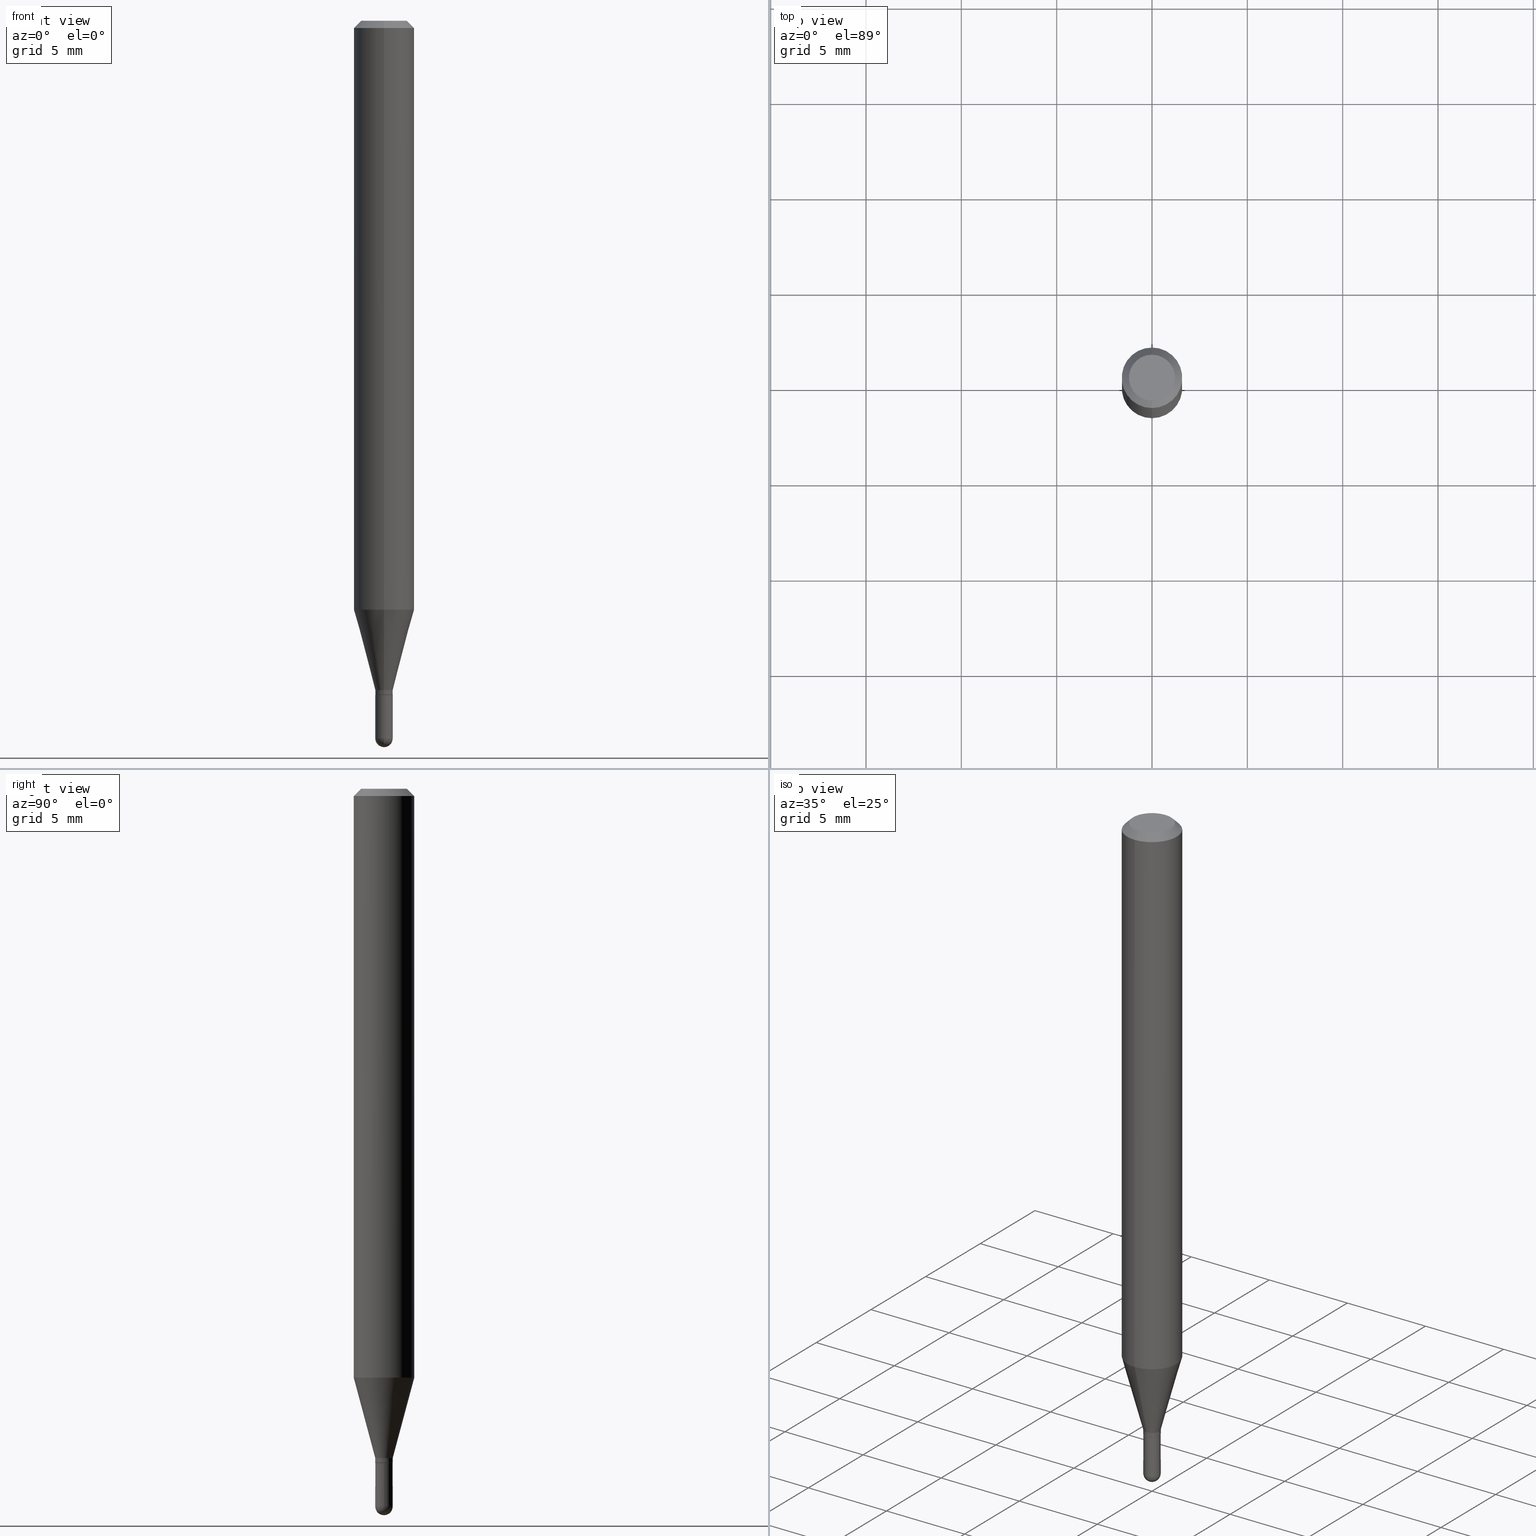
[diagram: canonical four-view strip — front | top / right | iso, engineering-drawing reading convention]
A machine part, canonical four-view strip (front | top / right | iso — engineering-drawing reading convention). The complete STEP part file that produces these views, byte-faithful:
ISO-10303-21;
HEADER;
FILE_DESCRIPTION (( 'STEP AP203' ),
    '1' );
FILE_NAME ('03134.STEP',
    '2024-03-08T18:18:46',
    ( '' ),
    ( '' ),
    'SwSTEP 2.0',
    'SolidWorks 2023',
    '' );
FILE_SCHEMA (( 'CONFIG_CONTROL_DESIGN' ));
ENDSEC;

DATA;
#1 = CARTESIAN_POINT ( 'NONE',  ( 1.278976924368174568E-16, 0.01799999999999992231, -6.284707459399665937E-17 ) ) ;
#2 = CARTESIAN_POINT ( 'NONE',  ( -5.856608403494851464E-45, 8.361793705848945321E-31, 2.394897259381071493E-16 ) ) ;
#3 = VERTEX_POINT ( 'NONE', #388 ) ;
#4 = CIRCLE ( 'NONE', #19, 0.01799999999999999864 ) ;
#5 = ORIENTED_EDGE ( 'NONE', *, *, #264, .T. ) ;
#6 = ORIENTED_EDGE ( 'NONE', *, *, #48, .T. ) ;
#7 = FACE_OUTER_BOUND ( 'NONE', #401, .T. ) ;
#8 = DIRECTION ( 'NONE',  ( -4.851104656540964275E-15, -0.7071067811865500152, -0.7071067811865450192 ) ) ;
#9 = DIRECTION ( 'NONE',  ( -2.445452881351750103E-29, 3.491504144110940427E-15, 1.000000000000000000 ) ) ;
#10 = LOCAL_TIME ( 13, 18, 46.00000000000000000, #165 ) ;
#11 = ADVANCED_FACE ( 'NONE', ( #243 ), #170, .T. ) ;
#12 = DIRECTION ( 'NONE',  ( 1.000000000000000000, -6.982962677686279332E-15, 0.000000000000000000 ) ) ;
#13 = VERTEX_POINT ( 'NONE', #297 ) ;
#14 = CARTESIAN_POINT ( 'NONE',  ( 0.01799999999999999864, -1.256933281983527929E-16, 8.777118196432682816E-31 ) ) ;
#15 = VECTOR ( 'NONE', #118, 39.37007874015748143 ) ;
#16 = ORIENTED_EDGE ( 'NONE', *, *, #190, .T. ) ;
#17 = APPROVAL_STATUS ( 'not_yet_approved' ) ;
#18 = LINE ( 'NONE', #300, #360 ) ;
#19 = AXIS2_PLACEMENT_3D ( 'NONE', #487, #218, #12 ) ;
#20 = PERSON_AND_ORGANIZATION ( #420, #271 ) ;
#21 = DIRECTION ( 'NONE',  ( -6.982962677686265922E-15, -1.000000000000000000, 3.483106191921935554E-15 ) ) ;
#22 = AXIS2_PLACEMENT_3D ( 'NONE', #480, #126, #511 ) ;
#23 = DATE_AND_TIME ( #494, #232 ) ;
#24 = DIRECTION ( 'NONE',  ( -6.982962677686265922E-15, -1.000000000000000000, 0.000000000000000000 ) ) ;
#25 = VECTOR ( 'NONE', #337, 39.37007874015748143 ) ;
#26 = ORIENTED_EDGE ( 'NONE', *, *, #190, .F. ) ;
#27 = EDGE_CURVE ( 'NONE', #442, #256, #80, .T. ) ;
#28 = FACE_OUTER_BOUND ( 'NONE', #408, .T. ) ;
#29 = CARTESIAN_POINT ( 'NONE',  ( 3.402847684400960204E-29, -4.858428016530374286E-15, -1.391500000000000181 ) ) ;
#30 = VERTEX_POINT ( 'NONE', #240 ) ;
#31 = ORIENTED_EDGE ( 'NONE', *, *, #104, .T. ) ;
#32 = CARTESIAN_POINT ( 'NONE',  ( 3.624184770766373010E-29, -5.174375344165542471E-15, -1.482000000000000206 ) ) ;
#33 = ADVANCED_FACE ( 'NONE', ( #28 ), #421, .T. ) ;
#34 = CLOSED_SHELL ( 'NONE', ( #456, #187, #54, #33, #193 ) ) ;
#35 = CONICAL_SURFACE ( 'NONE', #330, 0.01749999999999999820, 0.7853981633974739252 ) ;
#36 = VERTEX_POINT ( 'NONE', #272 ) ;
#37 = EDGE_LOOP ( 'NONE', ( #47, #134, #92, #125 ) ) ;
#38 = CARTESIAN_POINT ( 'NONE',  ( 0.000000000000000000, 0.000000000000000000, 0.000000000000000000 ) ) ;
#39 = CARTESIAN_POINT ( 'NONE',  ( 1.243449787580515640E-16, 0.01749999999999514097, -1.392000000000000126 ) ) ;
#40 = ORIENTED_EDGE ( 'NONE', *, *, #45, .T. ) ;
#41 = DIRECTION ( 'NONE',  ( 1.000000000000000000, -6.982962677686265922E-15, 4.883557194083112901E-29 ) ) ;
#42 = ORIENTED_EDGE ( 'NONE', *, *, #45, .F. ) ;
#43 = ORIENTED_EDGE ( 'NONE', *, *, #124, .T. ) ;
#44 = CIRCLE ( 'NONE', #140, 0.01799999999999999517 ) ;
#45 = EDGE_CURVE ( 'NONE', #486, #127, #309, .T. ) ;
#46 = DIRECTION ( 'NONE',  ( 7.105427357601000281E-15, 1.000000000000000000, 0.000000000000000000 ) ) ;
#47 = ORIENTED_EDGE ( 'NONE', *, *, #394, .F. ) ;
#48 = EDGE_CURVE ( 'NONE', #310, #178, #90, .T. ) ;
#49 = LINE ( 'NONE', #14, #81 ) ;
#50 = ORIENTED_EDGE ( 'NONE', *, *, #410, .F. ) ;
#51 = VECTOR ( 'NONE', #311, 39.37007874015748143 ) ;
#52 = UNCERTAINTY_MEASURE_WITH_UNIT (LENGTH_MEASURE( 1.000000000000000082E-05 ), #233, 'distance_accuracy_value', 'NONE');
#53 = DIRECTION ( 'NONE',  ( -2.445452881351750103E-29, 3.491504144110940427E-15, 1.000000000000000000 ) ) ;
#54 = ADVANCED_FACE ( 'NONE', ( #419 ), #467, .F. ) ;
#55 = LINE ( 'NONE', #333, #370 ) ;
#56 = CC_DESIGN_PERSON_AND_ORGANIZATION_ASSIGNMENT ( #191, #500, ( #354 ) ) ;
#57 = DIRECTION ( 'NONE',  ( -2.445468806185136597E-29, 3.491481338843145583E-15, 1.000000000000000000 ) ) ;
#58 = MECHANICAL_CONTEXT ( 'NONE', #197, 'mechanical' ) ;
#59 = CIRCLE ( 'NONE', #291, 0.01799999999999999517 ) ;
#60 = AXIS2_PLACEMENT_3D ( 'NONE', #116, #201, #143 ) ;
#61 = AXIS2_PLACEMENT_3D ( 'NONE', #347, #307, #147 ) ;
#62 = APPROVAL_DATE_TIME ( #349, #315 ) ;
#63 = DIRECTION ( 'NONE',  ( 1.000000000000000000, -6.982962677686279332E-15, 0.000000000000000000 ) ) ;
#64 = APPROVAL_PERSON_ORGANIZATION ( #20, #153, #301 ) ;
#65 = PERSON_AND_ORGANIZATION ( #420, #271 ) ;
#66 = DIRECTION ( 'NONE',  ( -2.445452881351749543E-29, 3.491504144110940427E-15, 1.000000000000000000 ) ) ;
#67 = CARTESIAN_POINT ( 'NONE',  ( 1.278976924368512546E-16, 0.01799999999999509631, -1.382000000000000117 ) ) ;
#68 = VECTOR ( 'NONE', #216, 39.37007874015748143 ) ;
#69 = ADVANCED_FACE ( 'NONE', ( #461 ), #428, .T. ) ;
#70 = EDGE_LOOP ( 'NONE', ( #400, #290, #43, #280 ) ) ;
#71 = PERSON_AND_ORGANIZATION ( #420, #271 ) ;
#72 = DIRECTION ( 'NONE',  ( -6.982962677686265133E-15, -1.000000000000000000, 0.000000000000000000 ) ) ;
#73 = LINE ( 'NONE', #67, #485 ) ;
#74 = ORIENTED_EDGE ( 'NONE', *, *, #452, .F. ) ;
#75 = LINE ( 'NONE', #39, #455 ) ;
#76 = CIRCLE ( 'NONE', #450, 0.01799999999999999517 ) ;
#77 = ORIENTED_EDGE ( 'NONE', *, *, #95, .T. ) ;
#78 = CC_DESIGN_PERSON_AND_ORGANIZATION_ASSIGNMENT ( #414, #106, ( #254 ) ) ;
#79 = CARTESIAN_POINT ( 'NONE',  ( 0.000000000000000000, 0.000000000000000000, 0.000000000000000000 ) ) ;
#80 = CIRCLE ( 'NONE', #378, 0.06250000000000000000 ) ;
#81 = VECTOR ( 'NONE', #141, 39.37007874015748143 ) ;
#82 = APPROVAL_ROLE ( '' ) ;
#83 = DIRECTION ( 'NONE',  ( 1.000000000000000000, -7.105427357601001070E-15, 4.926315508542082329E-29 ) ) ;
#84 = ORIENTED_EDGE ( 'NONE', *, *, #104, .F. ) ;
#85 = DIRECTION ( 'NONE',  ( -6.982962677686265922E-15, -1.000000000000000000, 0.000000000000000000 ) ) ;
#86 = ORIENTED_EDGE ( 'NONE', *, *, #288, .T. ) ;
#87 = ADVANCED_FACE ( 'NONE', ( #493 ), #130, .T. ) ;
#88 = VERTEX_POINT ( 'NONE', #499 ) ;
#89 = DIRECTION ( 'NONE',  ( -2.445452881351750103E-29, 3.491504144110940427E-15, 1.000000000000000000 ) ) ;
#90 = CIRCLE ( 'NONE', #377, 0.01799999999999992231 ) ;
#91 = ADVANCED_FACE ( 'NONE', ( #267 ), #304, .T. ) ;
#92 = ORIENTED_EDGE ( 'NONE', *, *, #288, .F. ) ;
#93 = DIRECTION ( 'NONE',  ( -6.982962677686265922E-15, -1.000000000000000000, 0.000000000000000000 ) ) ;
#94 = ORIENTED_EDGE ( 'NONE', *, *, #431, .T. ) ;
#95 = EDGE_CURVE ( 'NONE', #166, #256, #73, .T. ) ;
#96 = FACE_OUTER_BOUND ( 'NONE', #286, .T. ) ;
#97 = CARTESIAN_POINT ( 'NONE',  ( 0.01799999999999999864, -4.985835351868011408E-15, -1.392000000000000126 ) ) ;
#98 = SECURITY_CLASSIFICATION ( '', '', #299 ) ;
#99 = DIRECTION ( 'NONE',  ( -2.445468806185136597E-29, 3.491481338843145583E-15, 1.000000000000000000 ) ) ;
#100 = LINE ( 'NONE', #257, #434 ) ;
#101 = DATE_AND_TIME ( #238, #294 ) ;
#102 = AXIS2_PLACEMENT_3D ( 'NONE', #314, #41, #85 ) ;
#103 = DIRECTION ( 'NONE',  ( -6.982962677686265922E-15, -1.000000000000000000, 4.370956789862821150E-15 ) ) ;
#104 = EDGE_CURVE ( 'NONE', #312, #488, #149, .T. ) ;
#105 = ORIENTED_EDGE ( 'NONE', *, *, #234, .T. ) ;
#106 = PERSON_AND_ORGANIZATION_ROLE ( 'design_owner' ) ;
#107 = DIRECTION ( 'NONE',  ( 2.445452881351750103E-29, -3.491504144110940427E-15, -1.000000000000000000 ) ) ;
#108 = AXIS2_PLACEMENT_3D ( 'NONE', #367, #491, #406 ) ;
#109 = CARTESIAN_POINT ( 'NONE',  ( 1.278976924368510820E-16, 0.01799999999999500264, -1.391500000000000181 ) ) ;
#110 = DATE_AND_TIME ( #150, #172 ) ;
#111 = DIRECTION ( 'NONE',  ( -2.445452881351750103E-29, 3.491504144110940427E-15, 1.000000000000000000 ) ) ;
#112 = CIRCLE ( 'NONE', #483, 0.01799999999999992231 ) ;
#113 = ORIENTED_EDGE ( 'NONE', *, *, #184, .T. ) ;
#114 = DIRECTION ( 'NONE',  ( 1.000000000000000000, 0.000000000000000000, 0.000000000000000000 ) ) ;
#115 = ORIENTED_EDGE ( 'NONE', *, *, #274, .T. ) ;
#116 = CARTESIAN_POINT ( 'NONE',  ( 1.256933281983868125E-16, 0.01799999999999513794, -1.392000000000000126 ) ) ;
#117 = LOCAL_TIME ( 13, 18, 46.00000000000000000, #463 ) ;
#118 = DIRECTION ( 'NONE',  ( 4.937700262164548042E-15, 0.7071067811865451302, -0.7071067811865499042 ) ) ;
#119 = ORIENTED_EDGE ( 'NONE', *, *, #179, .F. ) ;
#120 = DIRECTION ( 'NONE',  ( 6.982962677686265922E-15, 1.000000000000000000, -3.491504144110940427E-15 ) ) ;
#121 = APPROVAL_DATE_TIME ( #159, #348 ) ;
#122 = FACE_OUTER_BOUND ( 'NONE', #282, .T. ) ;
#123 = CARTESIAN_POINT ( 'NONE',  ( 4.440892098500920998E-16, 0.06249999999999573952, -1.215923739063185627 ) ) ;
#124 = EDGE_CURVE ( 'NONE', #496, #310, #18, .T. ) ;
#125 = ORIENTED_EDGE ( 'NONE', *, *, #148, .F. ) ;
#126 = DIRECTION ( 'NONE',  ( -2.445452881351750103E-29, 3.491504144110940427E-15, 1.000000000000000000 ) ) ;
#127 = VERTEX_POINT ( 'NONE', #464 ) ;
#128 = ORIENTED_EDGE ( 'NONE', *, *, #179, .T. ) ;
#129 = DIRECTION ( 'NONE',  ( -2.445452881351750103E-29, 3.491504144110940427E-15, 1.000000000000000000 ) ) ;
#130 = CONICAL_SURFACE ( 'NONE', #205, 0.01799999999999992231, 0.2617993877991502960 ) ;
#131 = ADVANCED_FACE ( 'NONE', ( #270 ), #374, .T. ) ;
#132 = CC_DESIGN_APPROVAL ( #153, ( #354 ) ) ;
#133 = DIRECTION ( 'NONE',  ( -2.445452881351750103E-29, 3.491504144110940427E-15, 1.000000000000000000 ) ) ;
#134 = ORIENTED_EDGE ( 'NONE', *, *, #212, .T. ) ;
#135 = MANIFOLD_SOLID_BREP ( 'Body-Move/Copy2[2]', #469 ) ;
#136 = PRODUCT_RELATED_PRODUCT_CATEGORY ( 'detail', '', ( #254 ) ) ;
#137 = CARTESIAN_POINT ( 'NONE',  ( 0.000000000000000000, 0.000000000000000000, 0.000000000000000000 ) ) ;
#138 = DIRECTION ( 'NONE',  ( -6.982962677686266711E-15, -1.000000000000000000, 3.491504144110940033E-15 ) ) ;
#139 = ORIENTED_EDGE ( 'NONE', *, *, #207, .T. ) ;
#140 = AXIS2_PLACEMENT_3D ( 'NONE', #295, #57, #372 ) ;
#141 = DIRECTION ( 'NONE',  ( -2.445468806185136877E-29, 3.491481338843145188E-15, 1.000000000000000000 ) ) ;
#142 =( NAMED_UNIT ( * ) PLANE_ANGLE_UNIT ( ) SI_UNIT ( $, .RADIAN. ) );
#143 = DIRECTION ( 'NONE',  ( -1.000000000000000000, 6.982962677686265922E-15, -4.876176775795935793E-29 ) ) ;
#144 = DIMENSIONAL_EXPONENTS ( 1.000000000000000000, 0.000000000000000000, 0.000000000000000000, 0.000000000000000000, 0.000000000000000000, 0.000000000000000000, 0.000000000000000000 ) ;
#145 = APPROVAL_STATUS ( 'not_yet_approved' ) ;
#146 = MANIFOLD_SOLID_BREP ( 'Body-Move/Copy2[1]', #34 ) ;
#147 = DIRECTION ( 'NONE',  ( -6.982962677686265133E-15, -1.000000000000000000, 3.491504144110940427E-15 ) ) ;
#148 = EDGE_CURVE ( 'NONE', #30, #3, #59, .T. ) ;
#149 = CIRCLE ( 'NONE', #171, 0.06250000000000000000 ) ;
#150 = CALENDAR_DATE ( 2024, 8, 3 ) ;
#151 = AXIS2_PLACEMENT_3D ( 'NONE', #446, #405, #339 ) ;
#152 = CARTESIAN_POINT ( 'NONE',  ( 3.622645471445850223E-29, -5.176579708404007627E-15, -1.482000000000000206 ) ) ;
#153 = APPROVAL ( #145, 'UNSPECIFIED' ) ;
#154 = PERSON_AND_ORGANIZATION ( #420, #271 ) ;
#155 = DIRECTION ( 'NONE',  ( -4.937700262164674260E-15, -0.7071067811865632269, 0.7071067811865319186 ) ) ;
#156 = PERSON_AND_ORGANIZATION_ROLE ( 'creator' ) ;
#157 = ORIENTED_EDGE ( 'NONE', *, *, #371, .T. ) ;
#158 = DIRECTION ( 'NONE',  ( -2.445452881351750103E-29, 3.491504144110940427E-15, 1.000000000000000000 ) ) ;
#159 = DATE_AND_TIME ( #475, #10 ) ;
#160 = LINE ( 'NONE', #249, #51 ) ;
#161 = CIRCLE ( 'NONE', #407, 0.01749999999999999820 ) ;
#162 = ORIENTED_EDGE ( 'NONE', *, *, #502, .F. ) ;
#163 = LINE ( 'NONE', #318, #15 ) ;
#164 = ADVANCED_FACE ( 'NONE', ( #381 ), #189, .F. ) ;
#165 = COORDINATED_UNIVERSAL_TIME_OFFSET ( 5, 0, .BEHIND. ) ;
#166 = VERTEX_POINT ( 'NONE', #192 ) ;
#167 = CARTESIAN_POINT ( 'NONE',  ( -0.01799999999999999864, 1.278976924368180238E-16, -8.854083162458829188E-31 ) ) ;
#168 = AXIS2_PLACEMENT_3D ( 'NONE', #38, #478, #211 ) ;
#169 = CARTESIAN_POINT ( 'NONE',  ( -1.256933281983184281E-16, -0.01800000000000474831, -1.382000000000000117 ) ) ;
#170 = CONICAL_SURFACE ( 'NONE', #231, 0.06250000000000000000, 0.7853981633974483900 ) ;
#171 = AXIS2_PLACEMENT_3D ( 'NONE', #302, #386, #21 ) ;
#172 = LOCAL_TIME ( 13, 18, 46.00000000000000000, #265 ) ;
#173 = CC_DESIGN_PERSON_AND_ORGANIZATION_ASSIGNMENT ( #424, #156, ( #250 ) ) ;
#174 = FACE_OUTER_BOUND ( 'NONE', #433, .T. ) ;
#175 = CARTESIAN_POINT ( 'NONE',  ( -4.364351673553916201E-16, -0.06250000000000000000, 2.182190090069337767E-16 ) ) ;
#176 = ORIENTED_EDGE ( 'NONE', *, *, #380, .T. ) ;
#177 = DIRECTION ( 'NONE',  ( -6.982962677686265922E-15, -1.000000000000000000, 3.483106191921935554E-15 ) ) ;
#178 = VERTEX_POINT ( 'NONE', #109 ) ;
#179 = EDGE_CURVE ( 'NONE', #178, #166, #474, .T. ) ;
#180 = AXIS2_PLACEMENT_3D ( 'NONE', #489, #133, #138 ) ;
#181 = CARTESIAN_POINT ( 'NONE',  ( 4.440892098500924943E-16, 0.06249999999999993755, -0.01499999999999997863 ) ) ;
#182 = DIRECTION ( 'NONE',  ( -2.445468806185136597E-29, 3.491481338843145583E-15, 1.000000000000000000 ) ) ;
#183 = VECTOR ( 'NONE', #359, 39.37007874015748143 ) ;
#184 = EDGE_CURVE ( 'NONE', #178, #310, #338, .T. ) ;
#185 = CARTESIAN_POINT ( 'NONE',  ( 4.440892098500625669E-16, 0.06250000000000000000, -2.182190090069337767E-16 ) ) ;
#186 = AXIS2_PLACEMENT_3D ( 'NONE', #259, #9, #402 ) ;
#187 = ADVANCED_FACE ( 'NONE', ( #509 ), #361, .T. ) ;
#188 =( NAMED_UNIT ( * ) SI_UNIT ( $, .STERADIAN. ) SOLID_ANGLE_UNIT ( ) );
#189 = PLANE ( 'NONE',  #239 ) ;
#190 = EDGE_CURVE ( 'NONE', #199, #36, #306, .T. ) ;
#191 = PERSON_AND_ORGANIZATION ( #420, #271 ) ;
#192 = CARTESIAN_POINT ( 'NONE',  ( 2.859934511434718867E-16, 0.01799999999999509631, -1.382000000000000117 ) ) ;
#193 = ADVANCED_FACE ( 'NONE', ( #174 ), #278, .T. ) ;
#194 = DIRECTION ( 'NONE',  ( 0.000000000000000000, 0.000000000000000000, 1.000000000000000000 ) ) ;
#195 = APPROVAL_PERSON_ORGANIZATION ( #71, #348, #82 ) ;
#196 = DIRECTION ( 'NONE',  ( 6.982962677686265922E-15, 1.000000000000000000, -3.483106191921935554E-15 ) ) ;
#197 = APPLICATION_CONTEXT ( 'configuration controlled 3d designs of mechanical parts and assemblies' ) ;
#198 = APPLICATION_PROTOCOL_DEFINITION ( 'international standard', 'config_control_design', 1994, #228 ) ;
#199 = VERTEX_POINT ( 'NONE', #324 ) ;
#200 = DIRECTION ( 'NONE',  ( 1.000000000000000000, -6.982962677686265922E-15, 4.883557194083112901E-29 ) ) ;
#201 = DIRECTION ( 'NONE',  ( 2.438088387897960049E-29, -3.491481338843145188E-15, -1.000000000000000000 ) ) ;
#202 = CIRCLE ( 'NONE', #423, 0.01749999999999999820 ) ;
#203 = EDGE_LOOP ( 'NONE', ( #222, #139, #357, #266 ) ) ;
#204 = ORIENTED_EDGE ( 'NONE', *, *, #274, .F. ) ;
#205 = AXIS2_PLACEMENT_3D ( 'NONE', #503, #454, #72 ) ;
#206 = CARTESIAN_POINT ( 'NONE',  ( -1.256933281983186500E-16, -0.01800000000000484199, -1.391500000000000181 ) ) ;
#207 = EDGE_CURVE ( 'NONE', #166, #317, #399, .T. ) ;
#208 = CONICAL_SURFACE ( 'NONE', #151, 0.06250000000000000000, 0.7853981633974483900 ) ;
#209 = ORIENTED_EDGE ( 'NONE', *, *, #124, .F. ) ;
#210 = ORIENTED_EDGE ( 'NONE', *, *, #391, .F. ) ;
#211 = DIRECTION ( 'NONE',  ( 1.000000000000000000, -6.982962677686266711E-15, 4.876176775795935232E-29 ) ) ;
#212 = EDGE_CURVE ( 'NONE', #437, #88, #252, .T. ) ;
#213 = EDGE_LOOP ( 'NONE', ( #40, #157 ) ) ;
#214 = CARTESIAN_POINT ( 'NONE',  ( 3.404070410841636350E-29, -4.860173768602429131E-15, -1.392000000000000126 ) ) ;
#215 = ORIENTED_EDGE ( 'NONE', *, *, #391, .T. ) ;
#216 = DIRECTION ( 'NONE',  ( -2.445452881351750103E-29, 3.491504144110940427E-15, 1.000000000000000000 ) ) ;
#217 = ORIENTED_EDGE ( 'NONE', *, *, #48, .F. ) ;
#218 = DIRECTION ( 'NONE',  ( -2.445468806185136597E-29, 3.491481338843145583E-15, 1.000000000000000000 ) ) ;
#219 = EDGE_LOOP ( 'NONE', ( #210, #26, #115, #220 ) ) ;
#220 = ORIENTED_EDGE ( 'NONE', *, *, #429, .T. ) ;
#221 = CARTESIAN_POINT ( 'NONE',  ( 3.624184770766373010E-29, -5.174375344165542471E-15, -1.482000000000000206 ) ) ;
#222 = ORIENTED_EDGE ( 'NONE', *, *, #95, .F. ) ;
#223 = CYLINDRICAL_SURFACE ( 'NONE', #292, 0.06250000000000000000 ) ;
#224 = ORIENTED_EDGE ( 'NONE', *, *, #148, .T. ) ;
#225 = CC_DESIGN_SECURITY_CLASSIFICATION ( #98, ( #354 ) ) ;
#226 = DIRECTION ( 'NONE',  ( -2.445452881351750103E-29, 3.491504144110940427E-15, 1.000000000000000000 ) ) ;
#227 = DIRECTION ( 'NONE',  ( -1.807323732225330139E-15, -0.2588190451025181860, 0.9659258262890689783 ) ) ;
#228 = APPLICATION_CONTEXT ( 'configuration controlled 3d designs of mechanical parts and assemblies' ) ;
#229 = ADVANCED_FACE ( 'NONE', ( #472 ), #281, .T. ) ;
#230 = AXIS2_PLACEMENT_3D ( 'NONE', #32, #275, #430 ) ;
#231 = AXIS2_PLACEMENT_3D ( 'NONE', #427, #107, #196 ) ;
#232 = LOCAL_TIME ( 13, 18, 46.00000000000000000, #305 ) ;
#233 =( CONVERSION_BASED_UNIT ( 'INCH', #492 ) LENGTH_UNIT ( ) NAMED_UNIT ( #144 ) );
#234 = EDGE_CURVE ( 'NONE', #310, #317, #160, .T. ) ;
#235 = CARTESIAN_POINT ( 'NONE',  ( 0.000000000000000000, 0.000000000000000000, 0.000000000000000000 ) ) ;
#236 = DIRECTION ( 'NONE',  ( -6.982962677686265922E-15, -1.000000000000000000, 3.491504144110940427E-15 ) ) ;
#237 = CC_DESIGN_PERSON_AND_ORGANIZATION_ASSIGNMENT ( #154, #303, ( #98 ) ) ;
#238 = CALENDAR_DATE ( 2024, 8, 3 ) ;
#239 = AXIS2_PLACEMENT_3D ( 'NONE', #342, #66, #236 ) ;
#240 = CARTESIAN_POINT ( 'NONE',  ( -1.256933281983159137E-16, -0.01800000000000508138, -1.482000000000000206 ) ) ;
#241 = CARTESIAN_POINT ( 'NONE',  ( 3.379615882028119036E-29, -4.825258727161319601E-15, -1.382000000000000117 ) ) ;
#242 = ORIENTED_EDGE ( 'NONE', *, *, #380, .F. ) ;
#243 = FACE_OUTER_BOUND ( 'NONE', #508, .T. ) ;
#244 = CARTESIAN_POINT ( 'NONE',  ( 2.973484211196059892E-29, -4.245402773861981579E-15, -1.215923739063185405 ) ) ;
#245 = CARTESIAN_POINT ( 'NONE',  ( 3.379615882028119036E-29, -4.825258727161319601E-15, -1.382000000000000117 ) ) ;
#246 = PLANE ( 'NONE',  #319 ) ;
#247 = ADVANCED_FACE ( 'NONE', ( #277 ), #246, .F. ) ;
#248 = CC_DESIGN_APPROVAL ( #315, ( #250 ) ) ;
#249 = CARTESIAN_POINT ( 'NONE',  ( -1.256933281983522259E-16, -0.01799999999999992231, 6.284707459399665937E-17 ) ) ;
#250 = PRODUCT_DEFINITION ( 'UNKNOWN', '', #354, #287 ) ;
#251 = DIRECTION ( 'NONE',  ( 5.024295867788190974E-15, 0.7071067811865681119, 0.7071067811865270336 ) ) ;
#252 = CIRCLE ( 'NONE', #384, 0.01799999999999982170 ) ;
#253 = CARTESIAN_POINT ( 'NONE',  ( 3.402847684400960204E-29, -4.858428016530374286E-15, -1.391500000000000181 ) ) ;
#254 = PRODUCT ( '03134', '03134', '', ( #58 ) ) ;
#255 = DIRECTION ( 'NONE',  ( -2.445452881351750103E-29, 3.491504144110940427E-15, 1.000000000000000000 ) ) ;
#256 = VERTEX_POINT ( 'NONE', #123 ) ;
#257 = CARTESIAN_POINT ( 'NONE',  ( -1.256933281983184281E-16, -0.01800000000000474831, -1.382000000000000117 ) ) ;
#258 = CARTESIAN_POINT ( 'NONE',  ( 3.404070410841636350E-29, -4.860173768602429131E-15, -1.392000000000000126 ) ) ;
#259 = CARTESIAN_POINT ( 'NONE',  ( 2.973484211196059892E-29, -4.245402773861981579E-15, -1.215923739063185405 ) ) ;
#260 = CARTESIAN_POINT ( 'NONE',  ( 3.665894260296920714E-29, -5.240528554622416701E-15, -1.500000000000000222 ) ) ;
#261 = CONICAL_SURFACE ( 'NONE', #366, 0.01749999999999999820, 0.7853981633974739252 ) ;
#262 = DIRECTION ( 'NONE',  ( -2.445468806185136597E-29, 3.491481338843145583E-15, 1.000000000000000000 ) ) ;
#263 = CIRCLE ( 'NONE', #180, 0.04749999999999999362 ) ;
#264 = EDGE_CURVE ( 'NONE', #507, #178, #75, .T. ) ;
#265 = COORDINATED_UNIVERSAL_TIME_OFFSET ( 5, 0, .BEHIND. ) ;
#266 = ORIENTED_EDGE ( 'NONE', *, *, #362, .F. ) ;
#267 = FACE_OUTER_BOUND ( 'NONE', #481, .T. ) ;
#268 = CARTESIAN_POINT ( 'NONE',  ( 3.404092578209710223E-29, -4.860142023669658418E-15, -1.392000000000000126 ) ) ;
#269 = DATE_TIME_ROLE ( 'classification_date' ) ;
#270 = FACE_OUTER_BOUND ( 'NONE', #203, .T. ) ;
#271 = ORGANIZATION ( 'UNSPECIFIED', 'UNSPECIFIED', '' ) ;
#272 = CARTESIAN_POINT ( 'NONE',  ( -3.773273898774340269E-16, -0.04749999999999999362, 4.053361727833767782E-16 ) ) ;
#273 = DIRECTION ( 'NONE',  ( -2.445452881351750103E-29, 3.491504144110940427E-15, 1.000000000000000000 ) ) ;
#274 = EDGE_CURVE ( 'NONE', #199, #488, #163, .T. ) ;
#275 = DIRECTION ( 'NONE',  ( -2.445468806185136597E-29, 3.491481338843145583E-15, 1.000000000000000000 ) ) ;
#276 = AXIS2_PLACEMENT_3D ( 'NONE', #241, #495, #458 ) ;
#277 = FACE_OUTER_BOUND ( 'NONE', #479, .T. ) ;
#278 = CYLINDRICAL_SURFACE ( 'NONE', #168, 0.01799999999999999864 ) ;
#279 = ORIENTED_EDGE ( 'NONE', *, *, #371, .F. ) ;
#280 = ORIENTED_EDGE ( 'NONE', *, *, #184, .F. ) ;
#281 = CYLINDRICAL_SURFACE ( 'NONE', #449, 0.01799999999999992231 ) ;
#282 = EDGE_LOOP ( 'NONE', ( #176, #5, #217, #209 ) ) ;
#283 = FACE_OUTER_BOUND ( 'NONE', #70, .T. ) ;
#284 = AXIS2_PLACEMENT_3D ( 'NONE', #448, #226, #177 ) ;
#285 = FACE_OUTER_BOUND ( 'NONE', #219, .T. ) ;
#286 = EDGE_LOOP ( 'NONE', ( #440, #353, #42, #397, #86 ) ) ;
#287 = DESIGN_CONTEXT ( 'detailed design', #228, 'design' ) ;
#288 = EDGE_CURVE ( 'NONE', #3, #88, #512, .T. ) ;
#289 = CARTESIAN_POINT ( 'NONE',  ( 1.261213355974515202E-16, 0.01749999999999514097, -1.392000000000000126 ) ) ;
#290 = ORIENTED_EDGE ( 'NONE', *, *, #298, .T. ) ;
#291 = AXIS2_PLACEMENT_3D ( 'NONE', #425, #262, #416 ) ;
#292 = AXIS2_PLACEMENT_3D ( 'NONE', #137, #364, #453 ) ;
#293 = DIRECTION ( 'NONE',  ( 1.000000000000000000, -6.982962677686266711E-15, 4.876176775795935232E-29 ) ) ;
#294 = LOCAL_TIME ( 13, 18, 46.00000000000000000, #346 ) ;
#295 = CARTESIAN_POINT ( 'NONE',  ( 3.624184770766373010E-29, -5.174375344165542471E-15, -1.482000000000000206 ) ) ;
#296 = ORIENTED_EDGE ( 'NONE', *, *, #362, .T. ) ;
#297 = CARTESIAN_POINT ( 'NONE',  ( -0.01799999999999999517, -4.889360991480781903E-15, -1.482000000000000206 ) ) ;
#298 = EDGE_CURVE ( 'NONE', #507, #496, #202, .T. ) ;
#299 = SECURITY_CLASSIFICATION_LEVEL ( 'unclassified' ) ;
#300 = CARTESIAN_POINT ( 'NONE',  ( -1.222018468594755936E-16, -0.01750000000000485889, -1.392000000000000126 ) ) ;
#301 = APPROVAL_ROLE ( '' ) ;
#302 = CARTESIAN_POINT ( 'NONE',  ( 3.668179322027566335E-31, -5.237256216166327268E-17, -0.01499999999999976179 ) ) ;
#303 = PERSON_AND_ORGANIZATION_ROLE ( 'classification_officer' ) ;
#304 = CYLINDRICAL_SURFACE ( 'NONE', #61, 0.01799999999999992231 ) ;
#305 = COORDINATED_UNIVERSAL_TIME_OFFSET ( 5, 0, .BEHIND. ) ;
#306 = CIRCLE ( 'NONE', #351, 0.04749999999999999362 ) ;
#307 = DIRECTION ( 'NONE',  ( -2.445452881351750103E-29, 3.491504144110940427E-15, 1.000000000000000000 ) ) ;
#308 = EDGE_CURVE ( 'NONE', #317, #166, #112, .T. ) ;
#309 = CIRCLE ( 'NONE', #506, 0.01799999999999999864 ) ;
#310 = VERTEX_POINT ( 'NONE', #206 ) ;
#311 = DIRECTION ( 'NONE',  ( -2.445452881351750103E-29, 3.491504144110940427E-15, 1.000000000000000000 ) ) ;
#312 = VERTEX_POINT ( 'NONE', #355 ) ;
#313 = EDGE_CURVE ( 'NONE', #13, #127, #356, .T. ) ;
#314 = CARTESIAN_POINT ( 'NONE',  ( 3.622645471445850223E-29, -5.176579708404007627E-15, -1.482000000000000206 ) ) ;
#315 = APPROVAL ( #17, 'UNSPECIFIED' ) ;
#316 = EDGE_LOOP ( 'NONE', ( #242, #358 ) ) ;
#317 = VERTEX_POINT ( 'NONE', #169 ) ;
#318 = CARTESIAN_POINT ( 'NONE',  ( 4.364351673553919652E-16, 0.06249999999999995143, -0.01499999999999997863 ) ) ;
#319 = AXIS2_PLACEMENT_3D ( 'NONE', #396, #470, #120 ) ;
#320 = EDGE_LOOP ( 'NONE', ( #162, #296, #471, #368 ) ) ;
#321 = DIRECTION ( 'NONE',  ( -6.982962677686265922E-15, -1.000000000000000000, 0.000000000000000000 ) ) ;
#322 = CIRCLE ( 'NONE', #284, 0.06250000000000000000 ) ;
#323 = ORIENTED_EDGE ( 'NONE', *, *, #452, .T. ) ;
#324 = CARTESIAN_POINT ( 'NONE',  ( 3.840629472727447874E-16, 0.04749999999999999362, 7.364327909283752044E-17 ) ) ;
#325 = ORIENTED_EDGE ( 'NONE', *, *, #502, .T. ) ;
#326 = ADVANCED_FACE ( 'NONE', ( #122 ), #261, .T. ) ;
#327 = DIRECTION ( 'NONE',  ( 1.000000000000000000, -6.982962677686280121E-15, 0.000000000000000000 ) ) ;
#328 = DIRECTION ( 'NONE',  ( -6.982962677686265922E-15, -1.000000000000000000, 0.000000000000000000 ) ) ;
#329 = ORIENTED_EDGE ( 'NONE', *, *, #468, .T. ) ;
#330 = AXIS2_PLACEMENT_3D ( 'NONE', #445, #255, #457 ) ;
#331 = EDGE_CURVE ( 'NONE', #88, #13, #76, .T. ) ;
#332 = ADVANCED_BREP_SHAPE_REPRESENTATION ( '03134', ( #146, #135, #379 ), #426 ) ;
#333 = CARTESIAN_POINT ( 'NONE',  ( -4.287811248607203282E-16, -0.06250000000000005551, -0.01499999999999954321 ) ) ;
#334 = ORIENTED_EDGE ( 'NONE', *, *, #27, .T. ) ;
#335 = ADVANCED_FACE ( 'NONE', ( #7 ), #223, .T. ) ;
#336 = ORIENTED_EDGE ( 'NONE', *, *, #308, .T. ) ;
#337 = DIRECTION ( 'NONE',  ( -2.445452881351750103E-29, 3.491504144110940427E-15, 1.000000000000000000 ) ) ;
#338 = CIRCLE ( 'NONE', #412, 0.01799999999999992231 ) ;
#339 = DIRECTION ( 'NONE',  ( 6.982962677686265922E-15, 1.000000000000000000, -3.483106191921935554E-15 ) ) ;
#340 = APPROVAL_DATE_TIME ( #23, #153 ) ;
#341 = DATE_TIME_ROLE ( 'creation_date' ) ;
#342 = CARTESIAN_POINT ( 'NONE',  ( 3.404070410841636350E-29, -4.860173768602429131E-15, -1.392000000000000126 ) ) ;
#343 = ORIENTED_EDGE ( 'NONE', *, *, #331, .F. ) ;
#344 = APPLICATION_PROTOCOL_DEFINITION ( 'international standard', 'config_control_design', 1994, #197 ) ;
#345 = DIRECTION ( 'NONE',  ( -2.445468806185136597E-29, 3.491481338843145583E-15, 1.000000000000000000 ) ) ;
#346 = COORDINATED_UNIVERSAL_TIME_OFFSET ( 5, 0, .BEHIND. ) ;
#347 = CARTESIAN_POINT ( 'NONE',  ( 0.000000000000000000, 0.000000000000000000, 0.000000000000000000 ) ) ;
#348 = APPROVAL ( #466, 'UNSPECIFIED' ) ;
#349 = DATE_AND_TIME ( #382, #117 ) ;
#350 = DIRECTION ( 'NONE',  ( -6.982962677686265922E-15, -1.000000000000000000, 0.000000000000000000 ) ) ;
#351 = AXIS2_PLACEMENT_3D ( 'NONE', #2, #89, #439 ) ;
#352 = DIRECTION ( 'NONE',  ( -2.445452881351750103E-29, 3.491504144110940427E-15, 1.000000000000000000 ) ) ;
#353 = ORIENTED_EDGE ( 'NONE', *, *, #313, .T. ) ;
#354 = PRODUCT_DEFINITION_FORMATION_WITH_SPECIFIED_SOURCE ( 'ANY', '', #254, .NOT_KNOWN. ) ;
#355 = CARTESIAN_POINT ( 'NONE',  ( -4.364351673553912750E-16, -0.06250000000000005551, -0.01499999999999954321 ) ) ;
#356 = LINE ( 'NONE', #167, #183 ) ;
#357 = ORIENTED_EDGE ( 'NONE', *, *, #484, .T. ) ;
#358 = ORIENTED_EDGE ( 'NONE', *, *, #298, .F. ) ;
#359 = DIRECTION ( 'NONE',  ( -2.445468806185136877E-29, 3.491481338843145188E-15, 1.000000000000000000 ) ) ;
#360 = VECTOR ( 'NONE', #155, 39.37007874015748143 ) ;
#361 = SPHERICAL_SURFACE ( 'NONE', #102, 0.01799999999999982170 ) ;
#362 = EDGE_CURVE ( 'NONE', #256, #442, #497, .T. ) ;
#363 = CARTESIAN_POINT ( 'NONE',  ( -4.364351673553620378E-16, -0.06250000000000426048, -1.215923739063185183 ) ) ;
#364 = DIRECTION ( 'NONE',  ( -2.445452881351750103E-29, 3.491504144110940427E-15, 1.000000000000000000 ) ) ;
#365 = ORIENTED_EDGE ( 'NONE', *, *, #394, .T. ) ;
#366 = AXIS2_PLACEMENT_3D ( 'NONE', #435, #490, #93 ) ;
#367 = CARTESIAN_POINT ( 'NONE',  ( 3.622645471445850223E-29, -5.176579708404007627E-15, -1.482000000000000206 ) ) ;
#368 = ORIENTED_EDGE ( 'NONE', *, *, #429, .F. ) ;
#369 = CC_DESIGN_APPROVAL ( #348, ( #98 ) ) ;
#370 = VECTOR ( 'NONE', #8, 39.37007874015748143 ) ;
#371 = EDGE_CURVE ( 'NONE', #127, #486, #4, .T. ) ;
#372 = DIRECTION ( 'NONE',  ( 1.000000000000000000, -6.982962677686280121E-15, 0.000000000000000000 ) ) ;
#373 = LINE ( 'NONE', #185, #417 ) ;
#374 = CONICAL_SURFACE ( 'NONE', #276, 0.01799999999999992231, 0.2617993877991502960 ) ;
#375 = ADVANCED_FACE ( 'NONE', ( #285 ), #208, .T. ) ;
#376 = CARTESIAN_POINT ( 'NONE',  ( 0.000000000000000000, 0.000000000000000000, 0.000000000000000000 ) ) ;
#377 = AXIS2_PLACEMENT_3D ( 'NONE', #29, #111, #350 ) ;
#378 = AXIS2_PLACEMENT_3D ( 'NONE', #244, #158, #103 ) ;
#379 = AXIS2_PLACEMENT_3D ( 'NONE', #376, #194, #114 ) ;
#380 = EDGE_CURVE ( 'NONE', #496, #507, #161, .T. ) ;
#381 = FACE_OUTER_BOUND ( 'NONE', #316, .T. ) ;
#382 = CALENDAR_DATE ( 2024, 8, 3 ) ;
#383 = DIRECTION ( 'NONE',  ( -2.445452881351750103E-29, 3.491504144110940427E-15, 1.000000000000000000 ) ) ;
#384 = AXIS2_PLACEMENT_3D ( 'NONE', #432, #83, #46 ) ;
#385 = APPROVAL_ROLE ( '' ) ;
#386 = DIRECTION ( 'NONE',  ( -2.445452881351750103E-29, 3.491504144110940427E-15, 1.000000000000000000 ) ) ;
#387 = APPROVAL_PERSON_ORGANIZATION ( #65, #315, #385 ) ;
#388 = CARTESIAN_POINT ( 'NONE',  ( 0.01799999999999999517, -5.142952012115953829E-15, -1.482000000000000206 ) ) ;
#389 = DIRECTION ( 'NONE',  ( -6.982962677686265922E-15, -1.000000000000000000, 3.491504144110940427E-15 ) ) ;
#390 = ORIENTED_EDGE ( 'NONE', *, *, #484, .F. ) ;
#391 = EDGE_CURVE ( 'NONE', #36, #312, #55, .T. ) ;
#392 = DIRECTION ( 'NONE',  ( -6.982962677686265133E-15, -1.000000000000000000, 0.000000000000000000 ) ) ;
#393 = DIRECTION ( 'NONE',  ( -2.445452881351750103E-29, 3.491504144110940427E-15, 1.000000000000000000 ) ) ;
#394 = EDGE_CURVE ( 'NONE', #437, #30, #476, .T. ) ;
#395 = SHAPE_DEFINITION_REPRESENTATION ( #436, #332 ) ;
#396 = CARTESIAN_POINT ( 'NONE',  ( 3.316907271900976096E-16, 0.04749999999999999362, -4.610158387621606654E-17 ) ) ;
#397 = ORIENTED_EDGE ( 'NONE', *, *, #468, .F. ) ;
#398 = DIRECTION ( 'NONE',  ( -2.445452881351750103E-29, 3.491504144110940427E-15, 1.000000000000000000 ) ) ;
#399 = CIRCLE ( 'NONE', #22, 0.01799999999999992231 ) ;
#400 = ORIENTED_EDGE ( 'NONE', *, *, #264, .F. ) ;
#401 = EDGE_LOOP ( 'NONE', ( #334, #325, #84, #50 ) ) ;
#402 = DIRECTION ( 'NONE',  ( -6.982962677686265922E-15, -1.000000000000000000, 4.370956789862821150E-15 ) ) ;
#403 = ORIENTED_EDGE ( 'NONE', *, *, #313, .F. ) ;
#404 = EDGE_LOOP ( 'NONE', ( #336, #77, #473, #390 ) ) ;
#405 = DIRECTION ( 'NONE',  ( 2.445452881351750103E-29, -3.491504144110940427E-15, -1.000000000000000000 ) ) ;
#406 = DIRECTION ( 'NONE',  ( -6.982962677686265922E-15, -1.000000000000000000, 0.000000000000000000 ) ) ;
#407 = AXIS2_PLACEMENT_3D ( 'NONE', #258, #53, #328 ) ;
#408 = EDGE_LOOP ( 'NONE', ( #465, #365, #443, #343 ) ) ;
#409 = LINE ( 'NONE', #175, #25 ) ;
#410 = EDGE_CURVE ( 'NONE', #442, #312, #409, .T. ) ;
#411 = CARTESIAN_POINT ( 'NONE',  ( 0.000000000000000000, 0.000000000000000000, 0.000000000000000000 ) ) ;
#412 = AXIS2_PLACEMENT_3D ( 'NONE', #253, #273, #441 ) ;
#413 = CC_DESIGN_PERSON_AND_ORGANIZATION_ASSIGNMENT ( #498, #460, ( #354 ) ) ;
#414 = PERSON_AND_ORGANIZATION ( #420, #271 ) ;
#415 = AXIS2_PLACEMENT_3D ( 'NONE', #235, #383, #389 ) ;
#416 = DIRECTION ( 'NONE',  ( 1.000000000000000000, -6.982962677686280121E-15, 0.000000000000000000 ) ) ;
#417 = VECTOR ( 'NONE', #129, 39.37007874015748143 ) ;
#418 =( LENGTH_UNIT ( ) NAMED_UNIT ( * ) SI_UNIT ( $, .METRE. ) );
#419 = FACE_OUTER_BOUND ( 'NONE', #213, .T. ) ;
#420 = PERSON ( 'UNSPECIFIED', 'UNSPECIFIED', 'UNSPECIFIED', ('UNSPECIFIED'), ('UNSPECIFIED'), ('UNSPECIFIED') ) ;
#421 = SPHERICAL_SURFACE ( 'NONE', #444, 0.01799999999999982170 ) ;
#422 = ORIENTED_EDGE ( 'NONE', *, *, #308, .F. ) ;
#423 = AXIS2_PLACEMENT_3D ( 'NONE', #214, #398, #321 ) ;
#424 = PERSON_AND_ORGANIZATION ( #420, #271 ) ;
#425 = CARTESIAN_POINT ( 'NONE',  ( 3.624184770766373010E-29, -5.174375344165542471E-15, -1.482000000000000206 ) ) ;
#426 =( GEOMETRIC_REPRESENTATION_CONTEXT ( 3 ) GLOBAL_UNCERTAINTY_ASSIGNED_CONTEXT ( ( #52 ) ) GLOBAL_UNIT_ASSIGNED_CONTEXT ( ( #233, #142, #188 ) ) REPRESENTATION_CONTEXT ( 'NONE', 'WORKASPACE' ) );
#427 = CARTESIAN_POINT ( 'NONE',  ( 3.668179322027566335E-31, -5.237256216166327268E-17, -0.01499999999999976179 ) ) ;
#428 = CYLINDRICAL_SURFACE ( 'NONE', #415, 0.06250000000000000000 ) ;
#429 = EDGE_CURVE ( 'NONE', #488, #312, #322, .T. ) ;
#430 = DIRECTION ( 'NONE',  ( 1.000000000000000000, -6.982962677686280121E-15, 0.000000000000000000 ) ) ;
#431 = EDGE_CURVE ( 'NONE', #13, #30, #44, .T. ) ;
#432 = CARTESIAN_POINT ( 'NONE',  ( 3.622645471445850223E-29, -5.176579708404007627E-15, -1.482000000000000206 ) ) ;
#433 = EDGE_LOOP ( 'NONE', ( #403, #94, #224, #329, #279 ) ) ;
#434 = VECTOR ( 'NONE', #227, 39.37007874015748143 ) ;
#435 = CARTESIAN_POINT ( 'NONE',  ( 3.404070410841636350E-29, -4.860173768602429131E-15, -1.392000000000000126 ) ) ;
#436 = PRODUCT_DEFINITION_SHAPE ( 'NONE', 'NONE',  #250 ) ;
#437 = VERTEX_POINT ( 'NONE', #260 ) ;
#438 = EDGE_LOOP ( 'NONE', ( #6, #128, #422, #447 ) ) ;
#439 = DIRECTION ( 'NONE',  ( -6.982962677686266711E-15, -1.000000000000000000, 3.491504144110940033E-15 ) ) ;
#440 = ORIENTED_EDGE ( 'NONE', *, *, #331, .T. ) ;
#441 = DIRECTION ( 'NONE',  ( -6.982962677686265922E-15, -1.000000000000000000, 0.000000000000000000 ) ) ;
#442 = VERTEX_POINT ( 'NONE', #363 ) ;
#443 = ORIENTED_EDGE ( 'NONE', *, *, #431, .F. ) ;
#444 = AXIS2_PLACEMENT_3D ( 'NONE', #152, #200, #24 ) ;
#445 = CARTESIAN_POINT ( 'NONE',  ( 3.404070410841636350E-29, -4.860173768602429131E-15, -1.392000000000000126 ) ) ;
#446 = CARTESIAN_POINT ( 'NONE',  ( 3.668179322027566335E-31, -5.237256216166327268E-17, -0.01499999999999976179 ) ) ;
#447 = ORIENTED_EDGE ( 'NONE', *, *, #234, .F. ) ;
#448 = CARTESIAN_POINT ( 'NONE',  ( 3.668179322027566335E-31, -5.237256216166327268E-17, -0.01499999999999976179 ) ) ;
#449 = AXIS2_PLACEMENT_3D ( 'NONE', #79, #352, #504 ) ;
#450 = AXIS2_PLACEMENT_3D ( 'NONE', #221, #99, #327 ) ;
#451 = CARTESIAN_POINT ( 'NONE',  ( -1.222018468594755936E-16, -0.01750000000000485889, -1.392000000000000126 ) ) ;
#452 = EDGE_CURVE ( 'NONE', #36, #199, #263, .T. ) ;
#453 = DIRECTION ( 'NONE',  ( -6.982962677686265922E-15, -1.000000000000000000, 3.491504144110940427E-15 ) ) ;
#454 = DIRECTION ( 'NONE',  ( -2.445452881351750103E-29, 3.491504144110940427E-15, 1.000000000000000000 ) ) ;
#455 = VECTOR ( 'NONE', #251, 39.37007874015748143 ) ;
#456 = ADVANCED_FACE ( 'NONE', ( #96 ), #482, .T. ) ;
#457 = DIRECTION ( 'NONE',  ( -6.982962677686265922E-15, -1.000000000000000000, 0.000000000000000000 ) ) ;
#458 = DIRECTION ( 'NONE',  ( -6.982962677686265133E-15, -1.000000000000000000, 0.000000000000000000 ) ) ;
#459 = AXIS2_PLACEMENT_3D ( 'NONE', #411, #182, #293 ) ;
#460 = PERSON_AND_ORGANIZATION_ROLE ( 'creator' ) ;
#461 = FACE_OUTER_BOUND ( 'NONE', #320, .T. ) ;
#462 = ORIENTED_EDGE ( 'NONE', *, *, #207, .F. ) ;
#463 = COORDINATED_UNIVERSAL_TIME_OFFSET ( 5, 0, .BEHIND. ) ;
#464 = CARTESIAN_POINT ( 'NONE',  ( -0.01799999999999999864, -4.889360991480781903E-15, -1.392000000000000126 ) ) ;
#465 = ORIENTED_EDGE ( 'NONE', *, *, #212, .F. ) ;
#466 = APPROVAL_STATUS ( 'not_yet_approved' ) ;
#467 = PLANE ( 'NONE',  #60 ) ;
#468 = EDGE_CURVE ( 'NONE', #3, #486, #49, .T. ) ;
#469 = CLOSED_SHELL ( 'NONE', ( #229, #326, #11, #335, #87, #131, #69, #375, #247, #164, #510, #91 ) ) ;
#470 = DIRECTION ( 'NONE',  ( 2.445452881351749543E-29, -3.491504144110940427E-15, -1.000000000000000000 ) ) ;
#471 = ORIENTED_EDGE ( 'NONE', *, *, #410, .T. ) ;
#472 = FACE_OUTER_BOUND ( 'NONE', #438, .T. ) ;
#473 = ORIENTED_EDGE ( 'NONE', *, *, #27, .F. ) ;
#474 = LINE ( 'NONE', #1, #68 ) ;
#475 = CALENDAR_DATE ( 2024, 8, 3 ) ;
#476 = CIRCLE ( 'NONE', #108, 0.01799999999999982170 ) ;
#477 = CC_DESIGN_DATE_AND_TIME_ASSIGNMENT ( #110, #269, ( #98 ) ) ;
#478 = DIRECTION ( 'NONE',  ( -2.445468806185136597E-29, 3.491481338843145583E-15, 1.000000000000000000 ) ) ;
#479 = EDGE_LOOP ( 'NONE', ( #16, #323 ) ) ;
#480 = CARTESIAN_POINT ( 'NONE',  ( 3.379615882028119036E-29, -4.825258727161319601E-15, -1.382000000000000117 ) ) ;
#481 = EDGE_LOOP ( 'NONE', ( #119, #113, #105, #462 ) ) ;
#482 = CYLINDRICAL_SURFACE ( 'NONE', #459, 0.01799999999999999864 ) ;
#483 = AXIS2_PLACEMENT_3D ( 'NONE', #245, #393, #392 ) ;
#484 = EDGE_CURVE ( 'NONE', #317, #442, #100, .T. ) ;
#485 = VECTOR ( 'NONE', #501, 39.37007874015748143 ) ;
#486 = VERTEX_POINT ( 'NONE', #97 ) ;
#487 = CARTESIAN_POINT ( 'NONE',  ( 3.404092578209710223E-29, -4.860142023669658418E-15, -1.392000000000000126 ) ) ;
#488 = VERTEX_POINT ( 'NONE', #181 ) ;
#489 = CARTESIAN_POINT ( 'NONE',  ( -5.856608403494851464E-45, 8.361793705848945321E-31, 2.394897259381071493E-16 ) ) ;
#490 = DIRECTION ( 'NONE',  ( -2.445452881351750103E-29, 3.491504144110940427E-15, 1.000000000000000000 ) ) ;
#491 = DIRECTION ( 'NONE',  ( -1.000000000000000000, 6.982962677686265922E-15, -4.883557194083112340E-29 ) ) ;
#492 = LENGTH_MEASURE_WITH_UNIT ( LENGTH_MEASURE( 0.02539999999999999897 ), #418 );
#493 = FACE_OUTER_BOUND ( 'NONE', #404, .T. ) ;
#494 = CALENDAR_DATE ( 2024, 8, 3 ) ;
#495 = DIRECTION ( 'NONE',  ( -2.445452881351750103E-29, 3.491504144110940427E-15, 1.000000000000000000 ) ) ;
#496 = VERTEX_POINT ( 'NONE', #451 ) ;
#497 = CIRCLE ( 'NONE', #186, 0.06250000000000000000 ) ;
#498 = PERSON_AND_ORGANIZATION ( #420, #271 ) ;
#499 = CARTESIAN_POINT ( 'NONE',  ( 1.278976924368535965E-16, 0.01799999999999473549, -1.482000000000000206 ) ) ;
#500 = PERSON_AND_ORGANIZATION_ROLE ( 'design_supplier' ) ;
#501 = DIRECTION ( 'NONE',  ( 1.839019923739600315E-15, 0.2588190451025249583, 0.9659258262890670910 ) ) ;
#502 = EDGE_CURVE ( 'NONE', #256, #488, #373, .T. ) ;
#503 = CARTESIAN_POINT ( 'NONE',  ( 3.379615882028119036E-29, -4.825258727161319601E-15, -1.382000000000000117 ) ) ;
#504 = DIRECTION ( 'NONE',  ( -6.982962677686265133E-15, -1.000000000000000000, 3.491504144110940427E-15 ) ) ;
#505 = CC_DESIGN_DATE_AND_TIME_ASSIGNMENT ( #101, #341, ( #250 ) ) ;
#506 = AXIS2_PLACEMENT_3D ( 'NONE', #268, #345, #63 ) ;
#507 = VERTEX_POINT ( 'NONE', #289 ) ;
#508 = EDGE_LOOP ( 'NONE', ( #74, #215, #31, #204 ) ) ;
#509 = FACE_OUTER_BOUND ( 'NONE', #37, .T. ) ;
#510 = ADVANCED_FACE ( 'NONE', ( #283 ), #35, .T. ) ;
#511 = DIRECTION ( 'NONE',  ( -6.982962677686265133E-15, -1.000000000000000000, 0.000000000000000000 ) ) ;
#512 = CIRCLE ( 'NONE', #230, 0.01799999999999999517 ) ;
ENDSEC;
END-ISO-10303-21;
